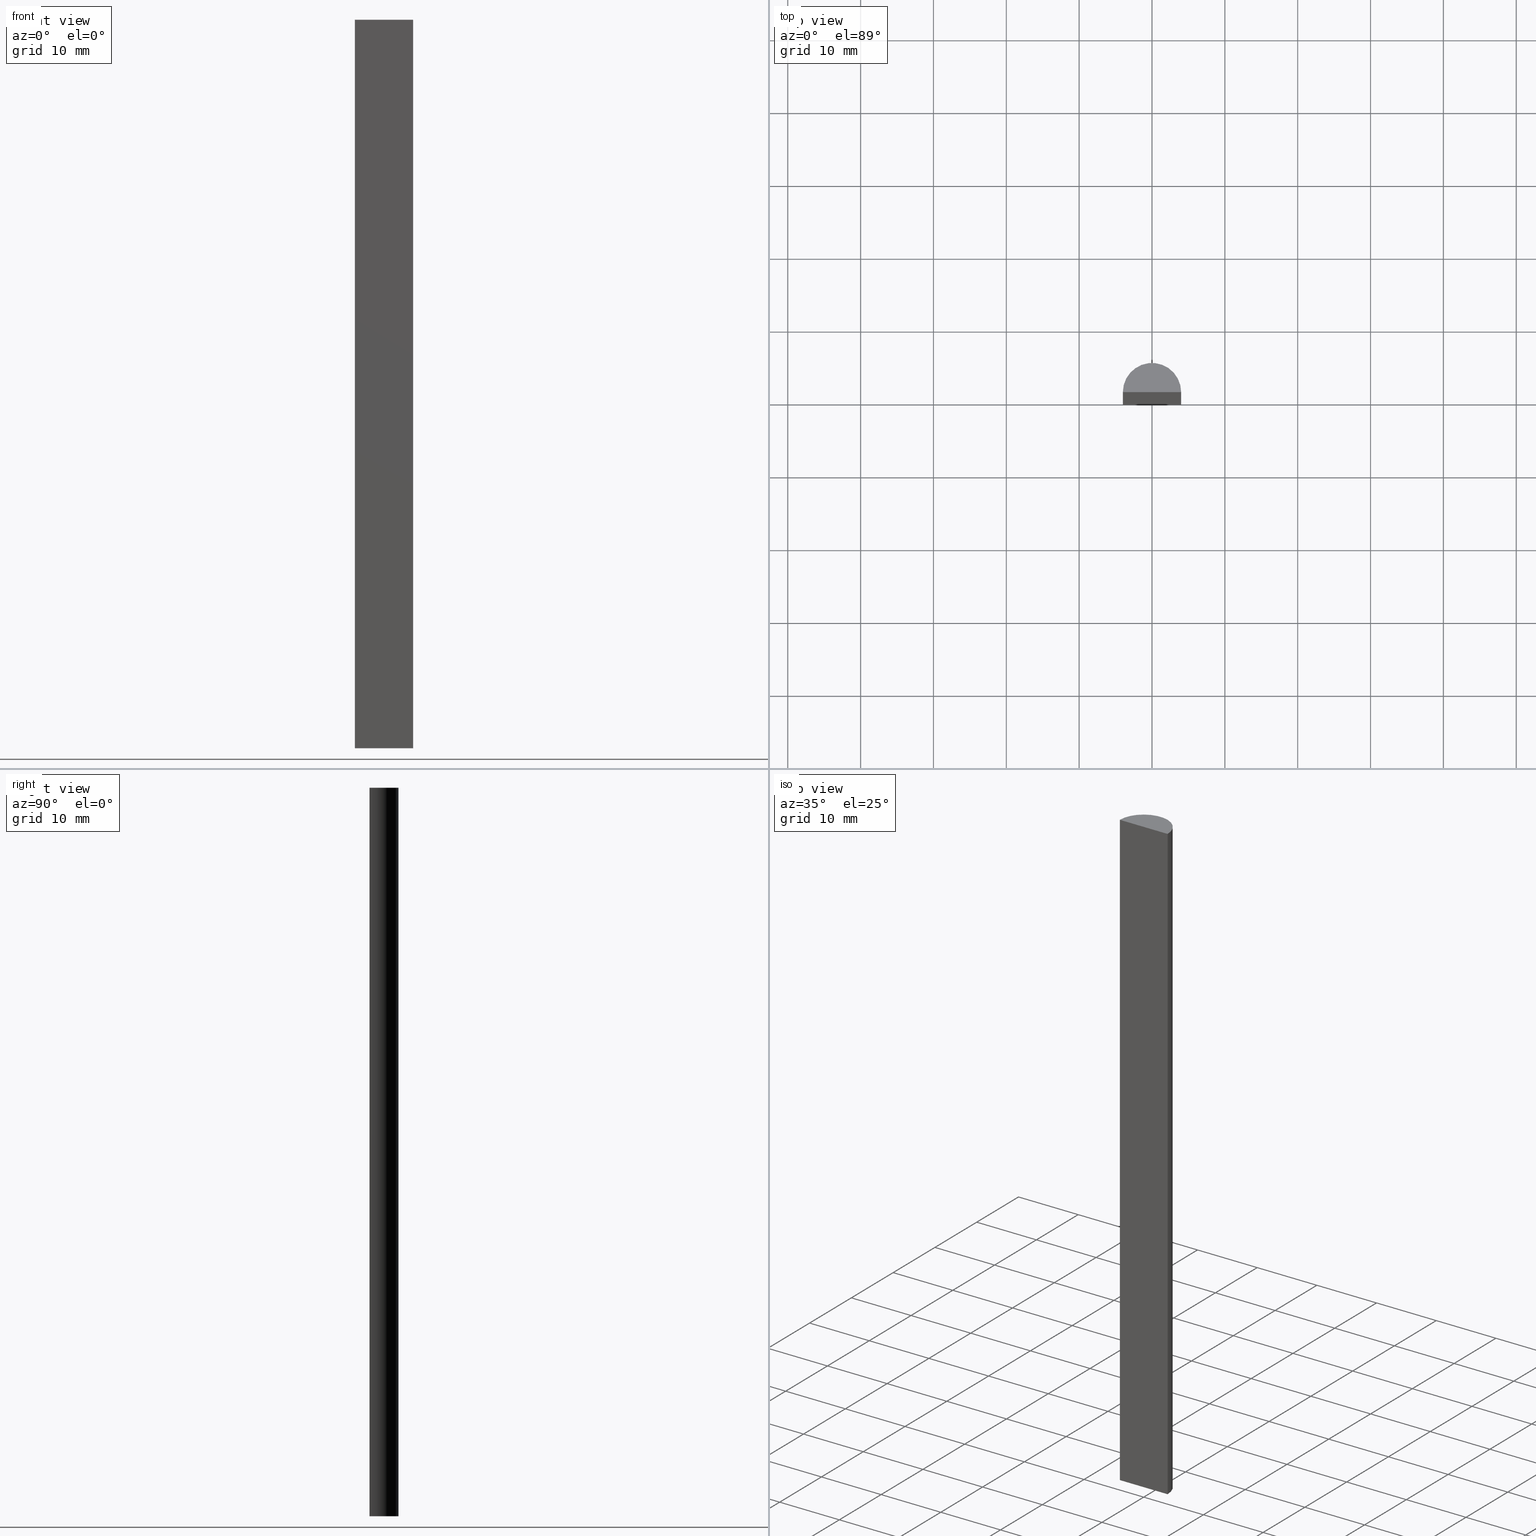
[diagram: canonical four-view strip — front | top / right | iso, engineering-drawing reading convention]
A machine part, canonical four-view strip (front | top / right | iso — engineering-drawing reading convention). The complete STEP part file that produces these views, byte-faithful:
ISO-10303-21;
HEADER;
/* Generated by software containing ST-Developer
 * from STEP Tools, Inc. (www.steptools.com) 
 */

FILE_DESCRIPTION(
/* description */ (''),
/* implementation_level */ '2;1');

FILE_NAME(
/* name */ 
'H:\\Eigene Dateien\\CAD Workspace Vault\\CAD\\E_3_Nocken\\E_3_01_Aufs
chwei\X\DFnocke\\01_Rund\\E_3_01_01_01_00_WKZ-0159.stp',
/* time_stamp */ '2024-05-16T11:17:40+02:00',
/* author */ ('dfischer'),
/* organization */ (''),
/* preprocessor_version */ 'ST-DEVELOPER v18.1',
/* originating_system */ 'Autodesk Inventor 2021',
/* authorisation */ '');

FILE_SCHEMA (('AUTOMOTIVE_DESIGN { 1 0 10303 214 3 1 1 }'));
ENDSEC;

DATA;
#10=MECHANICAL_DESIGN_GEOMETRIC_PRESENTATION_REPRESENTATION('',(#14,#15),
#126);
#11=SHAPE_REPRESENTATION_RELATIONSHIP('SRR','None',#133,#12);
#12=ADVANCED_BREP_SHAPE_REPRESENTATION('',(#13),#125);
#13=MANIFOLD_SOLID_BREP('Volumenk\X\F6rper1',#64);
#14=STYLED_ITEM('',(#143),#62);
#15=STYLED_ITEM('',(#142),#13);
#16=CYLINDRICAL_SURFACE('',#86,4.);
#17=FACE_OUTER_BOUND('',#21,.T.);
#18=FACE_OUTER_BOUND('',#22,.T.);
#19=FACE_OUTER_BOUND('',#23,.T.);
#20=FACE_OUTER_BOUND('',#24,.T.);
#21=EDGE_LOOP('',(#45,#46));
#22=EDGE_LOOP('',(#47,#48,#49,#50));
#23=EDGE_LOOP('',(#51,#52,#53,#54));
#24=EDGE_LOOP('',(#55,#56));
#25=LINE('',#113,#29);
#26=LINE('',#118,#30);
#27=LINE('',#119,#31);
#28=LINE('',#121,#32);
#29=VECTOR('',#96,10.);
#30=VECTOR('',#101,10.);
#31=VECTOR('',#102,10.);
#32=VECTOR('',#105,10.);
#33=CIRCLE('',#85,4.);
#34=CIRCLE('',#87,4.);
#35=VERTEX_POINT('',#110);
#36=VERTEX_POINT('',#111);
#37=VERTEX_POINT('',#115);
#38=VERTEX_POINT('',#116);
#39=EDGE_CURVE('',#35,#36,#33,.T.);
#40=EDGE_CURVE('',#36,#35,#25,.T.);
#41=EDGE_CURVE('',#37,#38,#34,.T.);
#42=EDGE_CURVE('',#35,#38,#26,.T.);
#43=EDGE_CURVE('',#37,#36,#27,.T.);
#44=EDGE_CURVE('',#38,#37,#28,.T.);
#45=ORIENTED_EDGE('',*,*,#39,.F.);
#46=ORIENTED_EDGE('',*,*,#40,.F.);
#47=ORIENTED_EDGE('',*,*,#41,.T.);
#48=ORIENTED_EDGE('',*,*,#42,.F.);
#49=ORIENTED_EDGE('',*,*,#39,.T.);
#50=ORIENTED_EDGE('',*,*,#43,.F.);
#51=ORIENTED_EDGE('',*,*,#44,.T.);
#52=ORIENTED_EDGE('',*,*,#43,.T.);
#53=ORIENTED_EDGE('',*,*,#40,.T.);
#54=ORIENTED_EDGE('',*,*,#42,.T.);
#55=ORIENTED_EDGE('',*,*,#41,.F.);
#56=ORIENTED_EDGE('',*,*,#44,.F.);
#57=PLANE('',#84);
#58=PLANE('',#88);
#59=PLANE('',#89);
#60=ADVANCED_FACE('',(#17),#57,.F.);
#61=ADVANCED_FACE('',(#18),#16,.T.);
#62=ADVANCED_FACE('',(#19),#58,.T.);
#63=ADVANCED_FACE('',(#20),#59,.T.);
#64=CLOSED_SHELL('',(#60,#61,#62,#63));
#65=DERIVED_UNIT_ELEMENT(#67,1.);
#66=DERIVED_UNIT_ELEMENT(#128,3.);
#67=(
MASS_UNIT()
NAMED_UNIT(*)
SI_UNIT($,.GRAM.)
);
#68=DERIVED_UNIT((#65,#66));
#69=MEASURE_REPRESENTATION_ITEM('density measure',
POSITIVE_RATIO_MEASURE(8.03),#68);
#70=PROPERTY_DEFINITION_REPRESENTATION(#75,#72);
#71=PROPERTY_DEFINITION_REPRESENTATION(#76,#73);
#72=REPRESENTATION('material name',(#74),#125);
#73=REPRESENTATION('density',(#69),#125);
#74=DESCRIPTIVE_REPRESENTATION_ITEM('1.4301','1.4301');
#75=PROPERTY_DEFINITION('material property','material name',#135);
#76=PROPERTY_DEFINITION('material property','density of part',#135);
#77=DATE_TIME_ROLE('creation_date');
#78=APPLIED_DATE_AND_TIME_ASSIGNMENT(#79,#77,(#135));
#79=DATE_AND_TIME(#80,#81);
#80=CALENDAR_DATE(2011,17,10);
#81=LOCAL_TIME(0,0,0.,#82);
#82=COORDINATED_UNIVERSAL_TIME_OFFSET(0,0,.BEHIND.);
#83=AXIS2_PLACEMENT_3D('placement',#108,#90,#91);
#84=AXIS2_PLACEMENT_3D('',#109,#92,#93);
#85=AXIS2_PLACEMENT_3D('',#112,#94,#95);
#86=AXIS2_PLACEMENT_3D('',#114,#97,#98);
#87=AXIS2_PLACEMENT_3D('',#117,#99,#100);
#88=AXIS2_PLACEMENT_3D('',#120,#103,#104);
#89=AXIS2_PLACEMENT_3D('',#122,#106,#107);
#90=DIRECTION('axis',(0.,0.,1.));
#91=DIRECTION('refdir',(1.,0.,0.));
#92=DIRECTION('center_axis',(0.,0.,1.));
#93=DIRECTION('ref_axis',(1.,0.,0.));
#94=DIRECTION('center_axis',(0.,0.,1.));
#95=DIRECTION('ref_axis',(1.,0.,0.));
#96=DIRECTION('',(1.,0.,0.));
#97=DIRECTION('center_axis',(0.,0.,1.));
#98=DIRECTION('ref_axis',(1.,0.,0.));
#99=DIRECTION('center_axis',(0.,0.,-1.));
#100=DIRECTION('ref_axis',(1.,0.,0.));
#101=DIRECTION('',(0.,0.,1.));
#102=DIRECTION('',(0.,0.,-1.));
#103=DIRECTION('center_axis',(0.,-1.,0.));
#104=DIRECTION('ref_axis',(0.,0.,-1.));
#105=DIRECTION('',(-1.,0.,0.));
#106=DIRECTION('center_axis',(0.,0.,1.));
#107=DIRECTION('ref_axis',(1.,0.,0.));
#108=CARTESIAN_POINT('',(0.,0.,0.));
#109=CARTESIAN_POINT('Origin',(1.14913547993443E-16,1.40283630960824,-50.));
#110=CARTESIAN_POINT('',(4.,0.,-50.));
#111=CARTESIAN_POINT('',(-4.,0.,-50.));
#112=CARTESIAN_POINT('Origin',(0.,0.,-50.));
#113=CARTESIAN_POINT('',(-4.,0.,-50.));
#114=CARTESIAN_POINT('Origin',(0.,0.,0.));
#115=CARTESIAN_POINT('',(-4.,0.,50.));
#116=CARTESIAN_POINT('',(4.,0.,50.));
#117=CARTESIAN_POINT('Origin',(0.,0.,50.));
#118=CARTESIAN_POINT('',(4.,0.,0.));
#119=CARTESIAN_POINT('',(-4.,0.,0.));
#120=CARTESIAN_POINT('Origin',(4.,0.,0.));
#121=CARTESIAN_POINT('',(-4.,0.,50.));
#122=CARTESIAN_POINT('Origin',(1.14913547993443E-16,1.40283630960824,50.));
#123=UNCERTAINTY_MEASURE_WITH_UNIT(LENGTH_MEASURE(0.01),#127,
'DISTANCE_ACCURACY_VALUE',
'Maximum model space distance between geometric entities at asserted c
onnectivities');
#124=UNCERTAINTY_MEASURE_WITH_UNIT(LENGTH_MEASURE(0.01),#127,
'DISTANCE_ACCURACY_VALUE',
'Maximum model space distance between geometric entities at asserted c
onnectivities');
#125=(
GEOMETRIC_REPRESENTATION_CONTEXT(3)
GLOBAL_UNCERTAINTY_ASSIGNED_CONTEXT((#123))
GLOBAL_UNIT_ASSIGNED_CONTEXT((#127,#129,#130))
REPRESENTATION_CONTEXT('','3D')
);
#126=(
GEOMETRIC_REPRESENTATION_CONTEXT(3)
GLOBAL_UNCERTAINTY_ASSIGNED_CONTEXT((#124))
GLOBAL_UNIT_ASSIGNED_CONTEXT((#127,#129,#130))
REPRESENTATION_CONTEXT('','3D')
);
#127=(
LENGTH_UNIT()
NAMED_UNIT(*)
SI_UNIT(.MILLI.,.METRE.)
);
#128=(
LENGTH_UNIT()
NAMED_UNIT(*)
SI_UNIT(.CENTI.,.METRE.)
);
#129=(
NAMED_UNIT(*)
PLANE_ANGLE_UNIT()
SI_UNIT($,.RADIAN.)
);
#130=(
NAMED_UNIT(*)
SI_UNIT($,.STERADIAN.)
SOLID_ANGLE_UNIT()
);
#131=SHAPE_DEFINITION_REPRESENTATION(#132,#133);
#132=PRODUCT_DEFINITION_SHAPE('',$,#135);
#133=SHAPE_REPRESENTATION('',(#83),#125);
#134=PRODUCT_DEFINITION_CONTEXT('part definition',#139,'design');
#135=PRODUCT_DEFINITION('WKZ-0159','E_3_01_01_01_00_WKZ-0159',#136,#134);
#136=PRODUCT_DEFINITION_FORMATION('',$,#141);
#137=PRODUCT_RELATED_PRODUCT_CATEGORY('E_3_01_01_01_00_WKZ-0159',
'E_3_01_01_01_00_WKZ-0159',(#141));
#138=APPLICATION_PROTOCOL_DEFINITION('international standard',
'automotive_design',2009,#139);
#139=APPLICATION_CONTEXT(
'Core Data for Automotive Mechanical Design Process');
#140=PRODUCT_CONTEXT('part definition',#139,'mechanical');
#141=PRODUCT('WKZ-0159','E_3_01_01_01_00_WKZ-0159',$,(#140));
#142=PRESENTATION_STYLE_ASSIGNMENT((#144));
#143=PRESENTATION_STYLE_ASSIGNMENT((#145));
#144=SURFACE_STYLE_USAGE(.BOTH.,#148);
#145=SURFACE_STYLE_USAGE(.BOTH.,#149);
#146=SURFACE_STYLE_RENDERING_WITH_PROPERTIES($,#156,(#147));
#147=SURFACE_STYLE_TRANSPARENT(0.);
#148=SURFACE_SIDE_STYLE('',(#150,#146));
#149=SURFACE_SIDE_STYLE('',(#151));
#150=SURFACE_STYLE_FILL_AREA(#152);
#151=SURFACE_STYLE_FILL_AREA(#153);
#152=FILL_AREA_STYLE('',(#154));
#153=FILL_AREA_STYLE('',(#155));
#154=FILL_AREA_STYLE_COLOUR('',#156);
#155=FILL_AREA_STYLE_COLOUR('',#157);
#156=COLOUR_RGB('',0.92156862745098,0.92156862745098,0.92156862745098);
#157=COLOUR_RGB('',0.16078431372549,0.16078431372549,0.16078431372549);
ENDSEC;
END-ISO-10303-21;
